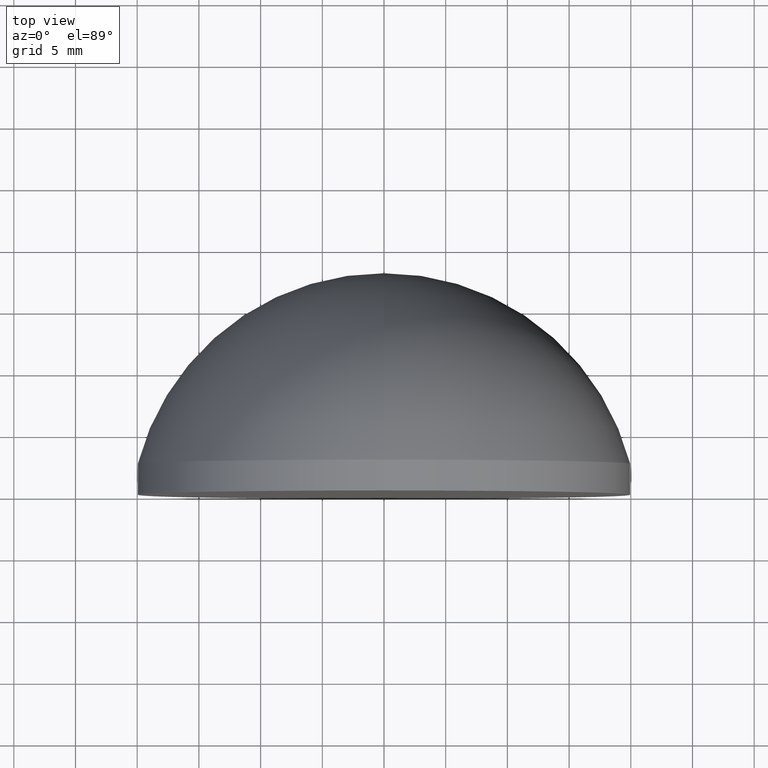
[diagram: clean part render]
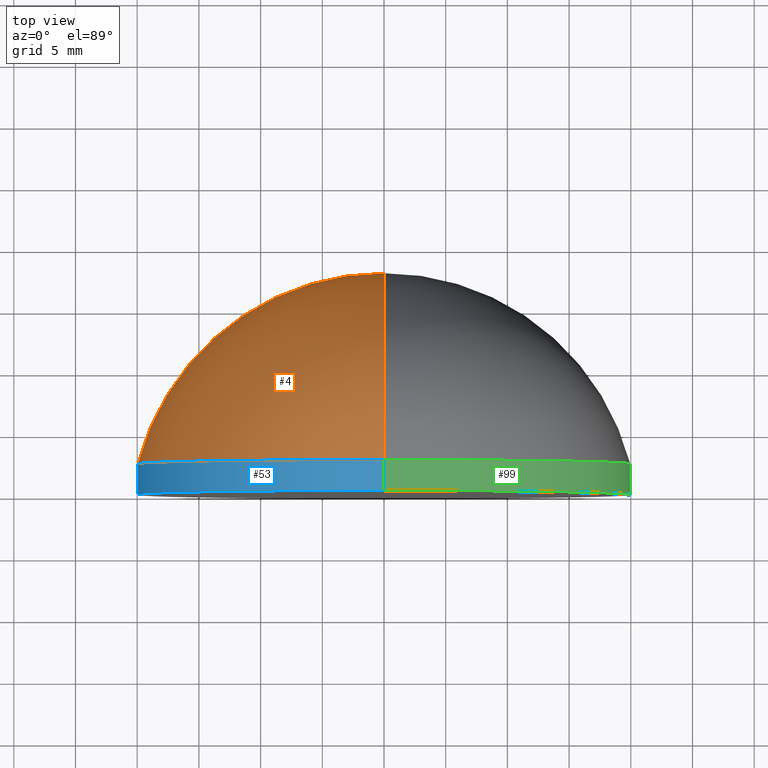
[diagram: same view with three faces highlighted in distinct colors, each labeled with its STEP entity id]
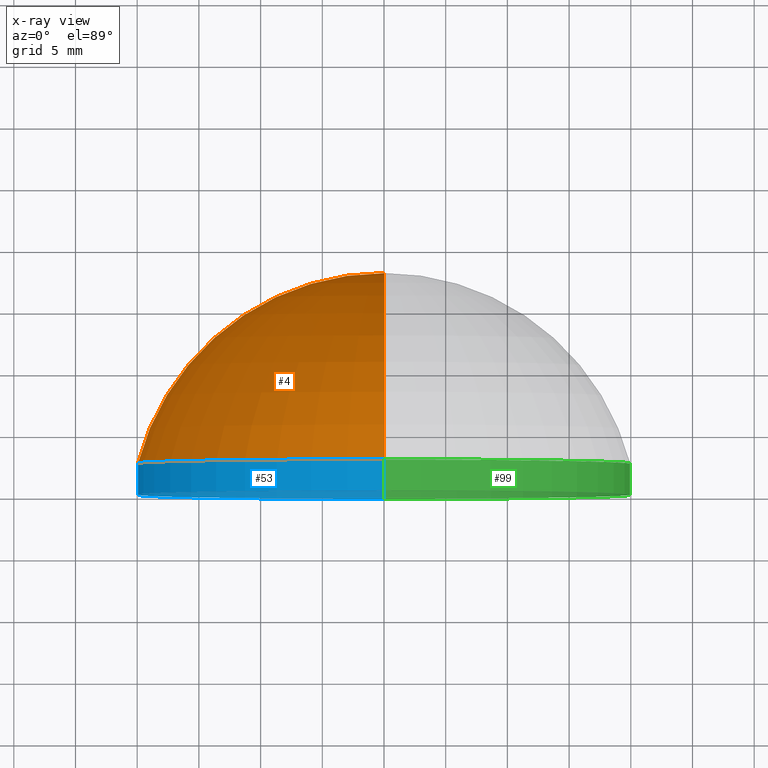
[diagram: x-ray of the same camera — body ghosted, the three highlighted faces saturated]
A machine part, top view with three faces highlighted in distinct colors.
The next image is the same camera in x-ray (body ghosted, the three faces saturated) — at least one of them is partly hidden behind the body in this view.
Their STEP definitions:

[orange] entity #4 — the highlighted toroidal blend (fillet) surface has major radius 0 mm and minor (blend) radius 20.67 mm.
#2 = AXIS2_PLACEMENT_3D ( 'NONE', #152, #191, #124 ) ;
#4 = ADVANCED_FACE ( 'NONE', ( #38 ), #69, .T. ) ;
#8 = CARTESIAN_POINT ( 'NONE',  ( 0.000000000000000000, -2.719999999996280948, -1.249999703745174884E-05 ) ) ;
#20 = EDGE_CURVE ( 'NONE', #181, #27, #119, .T. ) ;
#22 = AXIS2_PLACEMENT_3D ( 'NONE', #26, #107, #136 ) ;
#26 = CARTESIAN_POINT ( 'NONE',  ( 0.000000000000000000, -2.719999999996280948, 0.000000000000000000 ) ) ;
#27 = VERTEX_POINT ( 'NONE', #76 ) ;
#28 = EDGE_CURVE ( 'NONE', #139, #27, #200, .T. ) ;
#37 = CIRCLE ( 'NONE', #115, 20.00000000000000000 ) ;
#38 = FACE_OUTER_BOUND ( 'NONE', #72, .T. ) ;
#40 = ORIENTED_EDGE ( 'NONE', *, *, #198, .T. ) ;
#69 = TOROIDAL_SURFACE ( 'NONE', #22, -1.249999703745174884E-05, 20.67000000000001592 ) ;
#70 = DIRECTION ( 'NONE',  ( -1.000000000000000000, 0.000000000000000000, 0.000000000000000000 ) ) ;
#72 = EDGE_LOOP ( 'NONE', ( #93, #40, #95 ) ) ;
#76 = CARTESIAN_POINT ( 'NONE',  ( 0.000000000000000000, 17.94999999999999929, 0.000000000000000000 ) ) ;
#93 = ORIENTED_EDGE ( 'NONE', *, *, #28, .F. ) ;
#95 = ORIENTED_EDGE ( 'NONE', *, *, #20, .T. ) ;
#105 = AXIS2_PLACEMENT_3D ( 'NONE', #8, #70, #194 ) ;
#107 = DIRECTION ( 'NONE',  ( -0.000000000000000000, 1.000000000000000000, -0.000000000000000000 ) ) ;
#115 = AXIS2_PLACEMENT_3D ( 'NONE', #128, #130, #184 ) ;
#119 = CIRCLE ( 'NONE', #105, 20.67000000000001592 ) ;
#124 = DIRECTION ( 'NONE',  ( 1.224646799147353207E-16, 0.000000000000000000, -1.000000000000000000 ) ) ;
#128 = CARTESIAN_POINT ( 'NONE',  ( 0.000000000000000000, 2.499999999999996891, 0.000000000000000000 ) ) ;
#130 = DIRECTION ( 'NONE',  ( -0.000000000000000000, 1.000000000000000000, -0.000000000000000000 ) ) ;
#136 = DIRECTION ( 'NONE',  ( 0.000000000000000000, 0.000000000000000000, 1.000000000000000000 ) ) ;
#139 = VERTEX_POINT ( 'NONE', #163 ) ;
#152 = CARTESIAN_POINT ( 'NONE',  ( -1.530808136126668131E-21, -2.719999999996280948, 1.249999703745174884E-05 ) ) ;
#163 = CARTESIAN_POINT ( 'NONE',  ( 2.449293598294709274E-15, 2.499999999999996891, -20.00000000000002132 ) ) ;
#181 = VERTEX_POINT ( 'NONE', #197 ) ;
#184 = DIRECTION ( 'NONE',  ( 0.000000000000000000, 0.000000000000000000, 1.000000000000000000 ) ) ;
#191 = DIRECTION ( 'NONE',  ( 1.000000000000000000, 0.000000000000000000, 1.224646799147353207E-16 ) ) ;
#194 = DIRECTION ( 'NONE',  ( 0.000000000000000000, 0.000000000000000000, 1.000000000000000000 ) ) ;
#197 = CARTESIAN_POINT ( 'NONE',  ( 0.000000000000000000, 2.499999999999996891, 20.00000000000002132 ) ) ;
#198 = EDGE_CURVE ( 'NONE', #139, #181, #37, .T. ) ;
#200 = CIRCLE ( 'NONE', #2, 20.67000000000001592 ) ;

[blue] entity #53 — the highlighted cylindrical surface (partial cylindrical patch) has radius 20 mm, axis along (-0, 1, -0).
#10 = CARTESIAN_POINT ( 'NONE',  ( 0.000000000000000000, 17.94999999999999929, 0.000000000000000000 ) ) ;
#14 = CARTESIAN_POINT ( 'NONE',  ( 0.000000000000000000, 17.94999999999999929, 20.00000000000000000 ) ) ;
#36 = CIRCLE ( 'NONE', #102, 20.00000000000000000 ) ;
#37 = CIRCLE ( 'NONE', #115, 20.00000000000000000 ) ;
#39 = EDGE_LOOP ( 'NONE', ( #108, #134, #196, #137 ) ) ;
#41 = CYLINDRICAL_SURFACE ( 'NONE', #189, 20.00000000000000000 ) ;
#53 = ADVANCED_FACE ( 'NONE', ( #58 ), #41, .T. ) ;
#58 = FACE_OUTER_BOUND ( 'NONE', #39, .T. ) ;
#61 = CARTESIAN_POINT ( 'NONE',  ( 0.000000000000000000, -3.469446951953614189E-15, 20.00000000000000000 ) ) ;
#66 = VECTOR ( 'NONE', #116, 1000.000000000000000 ) ;
#78 = VERTEX_POINT ( 'NONE', #61 ) ;
#79 = LINE ( 'NONE', #140, #132 ) ;
#80 = CARTESIAN_POINT ( 'NONE',  ( 2.449293598294706513E-15, -3.469446951953614189E-15, -20.00000000000000000 ) ) ;
#102 = AXIS2_PLACEMENT_3D ( 'NONE', #154, #141, #117 ) ;
#108 = ORIENTED_EDGE ( 'NONE', *, *, #176, .F. ) ;
#110 = DIRECTION ( 'NONE',  ( -0.000000000000000000, 1.000000000000000000, -0.000000000000000000 ) ) ;
#114 = EDGE_CURVE ( 'NONE', #178, #78, #36, .T. ) ;
#115 = AXIS2_PLACEMENT_3D ( 'NONE', #128, #130, #184 ) ;
#116 = DIRECTION ( 'NONE',  ( -0.000000000000000000, 1.000000000000000000, -0.000000000000000000 ) ) ;
#117 = DIRECTION ( 'NONE',  ( 0.000000000000000000, 0.000000000000000000, 1.000000000000000000 ) ) ;
#127 = EDGE_CURVE ( 'NONE', #78, #181, #199, .T. ) ;
#128 = CARTESIAN_POINT ( 'NONE',  ( 0.000000000000000000, 2.499999999999996891, 0.000000000000000000 ) ) ;
#130 = DIRECTION ( 'NONE',  ( -0.000000000000000000, 1.000000000000000000, -0.000000000000000000 ) ) ;
#132 = VECTOR ( 'NONE', #165, 1000.000000000000000 ) ;
#134 = ORIENTED_EDGE ( 'NONE', *, *, #114, .T. ) ;
#137 = ORIENTED_EDGE ( 'NONE', *, *, #198, .F. ) ;
#139 = VERTEX_POINT ( 'NONE', #163 ) ;
#140 = CARTESIAN_POINT ( 'NONE',  ( 2.449293598294706513E-15, 17.94999999999999929, -20.00000000000000000 ) ) ;
#141 = DIRECTION ( 'NONE',  ( -0.000000000000000000, 1.000000000000000000, -0.000000000000000000 ) ) ;
#154 = CARTESIAN_POINT ( 'NONE',  ( 0.000000000000000000, -3.469446951953614189E-15, 0.000000000000000000 ) ) ;
#161 = DIRECTION ( 'NONE',  ( 0.000000000000000000, 0.000000000000000000, 1.000000000000000000 ) ) ;
#163 = CARTESIAN_POINT ( 'NONE',  ( 2.449293598294709274E-15, 2.499999999999996891, -20.00000000000002132 ) ) ;
#165 = DIRECTION ( 'NONE',  ( -0.000000000000000000, 1.000000000000000000, -0.000000000000000000 ) ) ;
#176 = EDGE_CURVE ( 'NONE', #178, #139, #79, .T. ) ;
#178 = VERTEX_POINT ( 'NONE', #80 ) ;
#181 = VERTEX_POINT ( 'NONE', #197 ) ;
#184 = DIRECTION ( 'NONE',  ( 0.000000000000000000, 0.000000000000000000, 1.000000000000000000 ) ) ;
#189 = AXIS2_PLACEMENT_3D ( 'NONE', #10, #110, #161 ) ;
#196 = ORIENTED_EDGE ( 'NONE', *, *, #127, .T. ) ;
#197 = CARTESIAN_POINT ( 'NONE',  ( 0.000000000000000000, 2.499999999999996891, 20.00000000000002132 ) ) ;
#198 = EDGE_CURVE ( 'NONE', #139, #181, #37, .T. ) ;
#199 = LINE ( 'NONE', #14, #66 ) ;

[green] entity #99 — the highlighted cylindrical surface (partial cylindrical patch) has radius 20 mm, axis along (-0, 1, -0).
#5 = CIRCLE ( 'NONE', #148, 20.00000000000000000 ) ;
#7 = ORIENTED_EDGE ( 'NONE', *, *, #156, .F. ) ;
#13 = AXIS2_PLACEMENT_3D ( 'NONE', #113, #65, #100 ) ;
#14 = CARTESIAN_POINT ( 'NONE',  ( 0.000000000000000000, 17.94999999999999929, 20.00000000000000000 ) ) ;
#16 = DIRECTION ( 'NONE',  ( -0.000000000000000000, 1.000000000000000000, -0.000000000000000000 ) ) ;
#18 = AXIS2_PLACEMENT_3D ( 'NONE', #30, #49, #32 ) ;
#30 = CARTESIAN_POINT ( 'NONE',  ( 0.000000000000000000, 17.94999999999999929, 0.000000000000000000 ) ) ;
#32 = DIRECTION ( 'NONE',  ( 0.000000000000000000, 0.000000000000000000, 1.000000000000000000 ) ) ;
#49 = DIRECTION ( 'NONE',  ( -0.000000000000000000, 1.000000000000000000, -0.000000000000000000 ) ) ;
#57 = ORIENTED_EDGE ( 'NONE', *, *, #176, .T. ) ;
#61 = CARTESIAN_POINT ( 'NONE',  ( 0.000000000000000000, -3.469446951953614189E-15, 20.00000000000000000 ) ) ;
#64 = CYLINDRICAL_SURFACE ( 'NONE', #18, 20.00000000000000000 ) ;
#65 = DIRECTION ( 'NONE',  ( -0.000000000000000000, 1.000000000000000000, -0.000000000000000000 ) ) ;
#66 = VECTOR ( 'NONE', #116, 1000.000000000000000 ) ;
#78 = VERTEX_POINT ( 'NONE', #61 ) ;
#79 = LINE ( 'NONE', #140, #132 ) ;
#80 = CARTESIAN_POINT ( 'NONE',  ( 2.449293598294706513E-15, -3.469446951953614189E-15, -20.00000000000000000 ) ) ;
#96 = FACE_OUTER_BOUND ( 'NONE', #149, .T. ) ;
#99 = ADVANCED_FACE ( 'NONE', ( #96 ), #64, .T. ) ;
#100 = DIRECTION ( 'NONE',  ( 0.000000000000000000, 0.000000000000000000, 1.000000000000000000 ) ) ;
#113 = CARTESIAN_POINT ( 'NONE',  ( 0.000000000000000000, 2.499999999999996891, 0.000000000000000000 ) ) ;
#116 = DIRECTION ( 'NONE',  ( -0.000000000000000000, 1.000000000000000000, -0.000000000000000000 ) ) ;
#126 = DIRECTION ( 'NONE',  ( 0.000000000000000000, 0.000000000000000000, 1.000000000000000000 ) ) ;
#127 = EDGE_CURVE ( 'NONE', #78, #181, #199, .T. ) ;
#132 = VECTOR ( 'NONE', #165, 1000.000000000000000 ) ;
#139 = VERTEX_POINT ( 'NONE', #163 ) ;
#140 = CARTESIAN_POINT ( 'NONE',  ( 2.449293598294706513E-15, 17.94999999999999929, -20.00000000000000000 ) ) ;
#148 = AXIS2_PLACEMENT_3D ( 'NONE', #155, #16, #126 ) ;
#149 = EDGE_LOOP ( 'NONE', ( #159, #57, #7, #173 ) ) ;
#155 = CARTESIAN_POINT ( 'NONE',  ( 0.000000000000000000, -3.469446951953614189E-15, 0.000000000000000000 ) ) ;
#156 = EDGE_CURVE ( 'NONE', #181, #139, #174, .T. ) ;
#159 = ORIENTED_EDGE ( 'NONE', *, *, #168, .T. ) ;
#163 = CARTESIAN_POINT ( 'NONE',  ( 2.449293598294709274E-15, 2.499999999999996891, -20.00000000000002132 ) ) ;
#165 = DIRECTION ( 'NONE',  ( -0.000000000000000000, 1.000000000000000000, -0.000000000000000000 ) ) ;
#168 = EDGE_CURVE ( 'NONE', #78, #178, #5, .T. ) ;
#173 = ORIENTED_EDGE ( 'NONE', *, *, #127, .F. ) ;
#174 = CIRCLE ( 'NONE', #13, 20.00000000000000000 ) ;
#176 = EDGE_CURVE ( 'NONE', #178, #139, #79, .T. ) ;
#178 = VERTEX_POINT ( 'NONE', #80 ) ;
#181 = VERTEX_POINT ( 'NONE', #197 ) ;
#197 = CARTESIAN_POINT ( 'NONE',  ( 0.000000000000000000, 2.499999999999996891, 20.00000000000002132 ) ) ;
#199 = LINE ( 'NONE', #14, #66 ) ;